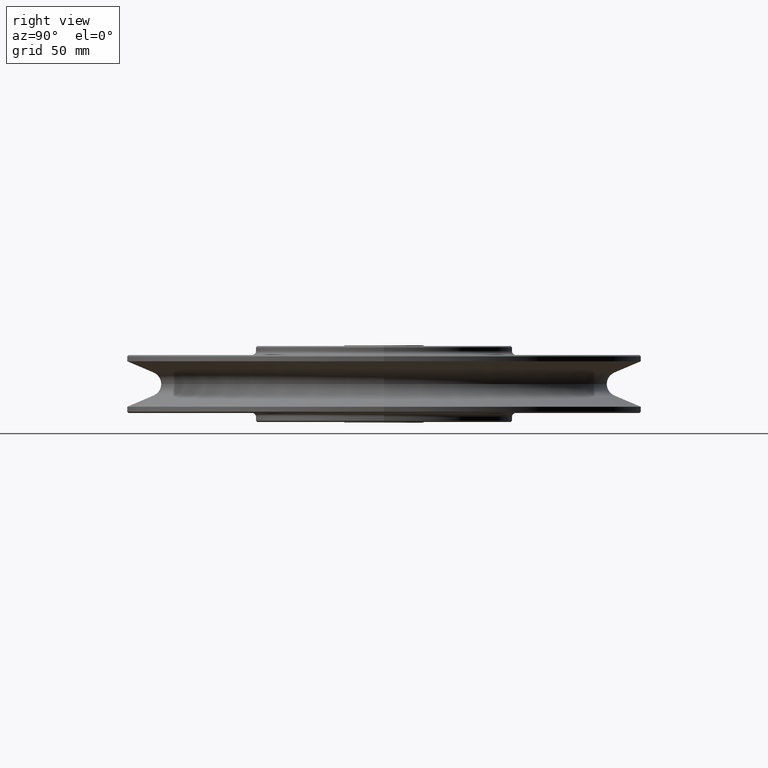
[diagram: clean part render]
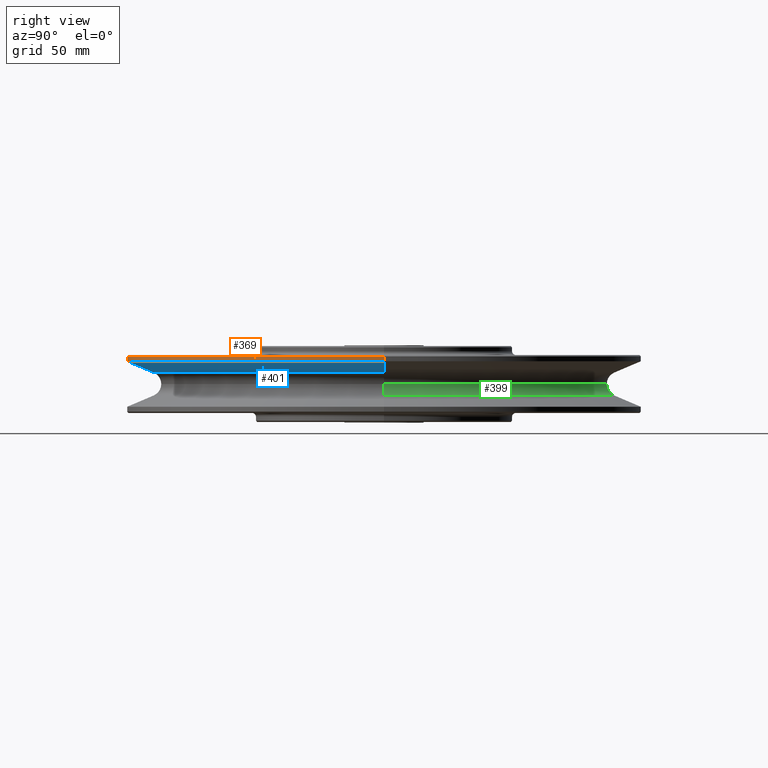
[diagram: same view with three faces highlighted in distinct colors, each labeled with its STEP entity id]
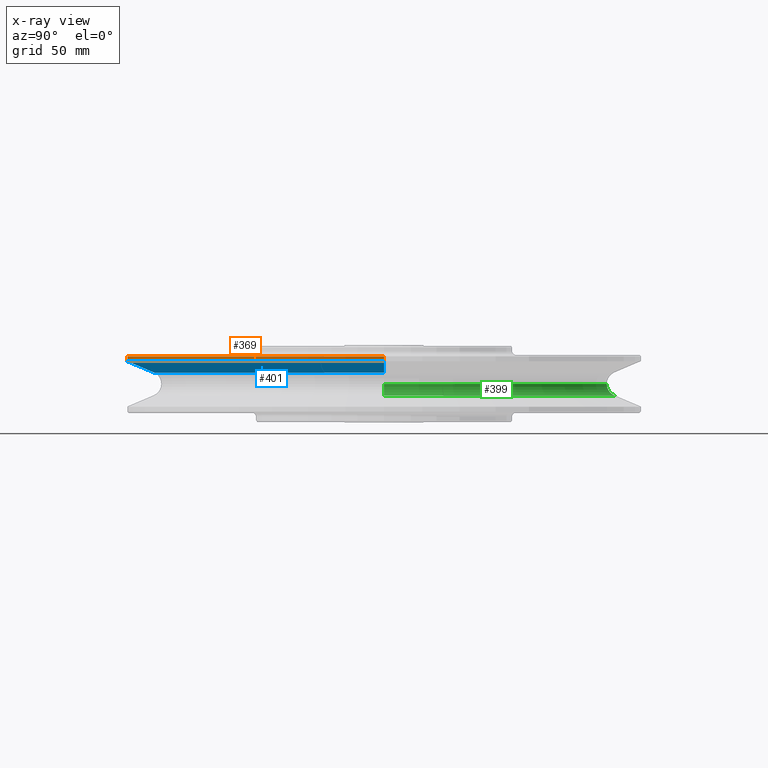
[diagram: x-ray of the same camera — body ghosted, the three highlighted faces saturated]
A machine part, right view with three faces highlighted in distinct colors.
The next image is the same camera in x-ray (body ghosted, the three faces saturated) — at least one of them is partly hidden behind the body in this view.
Their STEP definitions:

[orange] entity #369 — the highlighted cylindrical surface (partial cylindrical patch) has radius 200 mm, axis along (0, 0, 1).
#369=ADVANCED_FACE('',(#768),#769,.T.);
#768=FACE_OUTER_BOUND('',#1178,.T.);
#769=CYLINDRICAL_SURFACE('',#1179,200.0);
#1178=EDGE_LOOP('',(#2427,#2428,#2429,#2430));
#1179=AXIS2_PLACEMENT_3D('',#2431,#2432,#2433);
#2427=ORIENTED_EDGE('',*,*,#2706,.T.);
#2428=ORIENTED_EDGE('',*,*,#3073,.F.);
#2429=ORIENTED_EDGE('',*,*,#2707,.T.);
#2430=ORIENTED_EDGE('',*,*,#3074,.T.);
#2431=CARTESIAN_POINT('',(0.0,0.0,19.5825495));
#2432=DIRECTION('',(0.0,0.0,1.0));
#2433=DIRECTION('',(1.0,0.0,0.0));
#2706=EDGE_CURVE('',#3259,#3334,#3343,.T.);
#2707=EDGE_CURVE('',#3337,#3261,#3344,.T.);
#3073=EDGE_CURVE('',#3337,#3334,#3890,.T.);
#3074=EDGE_CURVE('',#3261,#3259,#3891,.T.);
#3259=VERTEX_POINT('',#5292);
#3261=VERTEX_POINT('',#5295);
#3334=VERTEX_POINT('',#5383);
#3337=VERTEX_POINT('',#5387);
#3343=LINE('',#5394,#5395);
#3344=LINE('',#5396,#5397);
#3890=CIRCLE('',#9089,200.0);
#3891=CIRCLE('',#9090,200.0);
#5292=CARTESIAN_POINT('',(200.0,0.0,17.665099));
#5295=CARTESIAN_POINT('',(-200.0,2.44929359829471E-014,17.665099));
#5383=CARTESIAN_POINT('',(200.0,0.0,21.5));
#5387=CARTESIAN_POINT('',(-200.0,2.44929359829471E-014,21.5));
#5394=CARTESIAN_POINT('',(200.0,-2.44929359829471E-014,19.5825495));
#5395=VECTOR('',#9322,1.0);
#5396=CARTESIAN_POINT('',(-200.0,2.44929359829471E-014,19.5825495));
#5397=VECTOR('',#9323,1.0);
#9089=AXIS2_PLACEMENT_3D('',#9698,#9699,#9700);
#9090=AXIS2_PLACEMENT_3D('',#9701,#9702,#9703);
#9322=DIRECTION('',(0.0,0.0,1.0));
#9323=DIRECTION('',(-0.0,-0.0,-1.0));
#9698=CARTESIAN_POINT('',(0.0,0.0,21.5));
#9699=DIRECTION('',(0.0,0.0,1.0));
#9700=DIRECTION('',(1.0,0.0,0.0));
#9701=CARTESIAN_POINT('',(0.0,0.0,17.665099));
#9702=DIRECTION('',(0.0,0.0,1.0));
#9703=DIRECTION('',(1.0,0.0,0.0));

[blue] entity #401 — the highlighted conical surface has half-angle 67.5 deg.
#401=ADVANCED_FACE('',(#820),#821,.T.);
#820=FACE_OUTER_BOUND('',#1230,.T.);
#821=CONICAL_SURFACE('',#1231,189.4939855,1.17809722010449);
#1230=EDGE_LOOP('',(#2555,#2556,#2557,#2558));
#1231=AXIS2_PLACEMENT_3D('',#2559,#2560,#2561);
#2555=ORIENTED_EDGE('',*,*,#2652,.T.);
#2556=ORIENTED_EDGE('',*,*,#3074,.F.);
#2557=ORIENTED_EDGE('',*,*,#2653,.T.);
#2558=ORIENTED_EDGE('',*,*,#2650,.T.);
#2559=CARTESIAN_POINT('',(0.0,0.0,13.313365));
#2560=DIRECTION('',(-0.0,-0.0,1.0));
#2561=DIRECTION('',(1.0,0.0,0.0));
#2650=EDGE_CURVE('',#3106,#3108,#3257,.T.);
#2652=EDGE_CURVE('',#3108,#3259,#3260,.T.);
#2653=EDGE_CURVE('',#3261,#3106,#3262,.T.);
#3074=EDGE_CURVE('',#3261,#3259,#3891,.T.);
#3106=VERTEX_POINT('',#3923);
#3108=VERTEX_POINT('',#3925);
#3257=CIRCLE('',#5290,178.987971);
#3259=VERTEX_POINT('',#5292);
#3260=LINE('',#5293,#5294);
#3261=VERTEX_POINT('',#5295);
#3262=LINE('',#5296,#5297);
#3891=CIRCLE('',#9090,200.0);
#3923=CARTESIAN_POINT('',(-178.987971,2.19197045771029E-014,8.961631));
#3925=CARTESIAN_POINT('',(178.987971,0.0,8.961631));
#5290=AXIS2_PLACEMENT_3D('',#9229,#9230,#9231);
#5292=CARTESIAN_POINT('',(200.0,0.0,17.665099));
#5293=CARTESIAN_POINT('',(189.4939855,-2.3206320280025E-014,13.313365));
#5294=VECTOR('',#9232,1.0);
#5295=CARTESIAN_POINT('',(-200.0,2.44929359829471E-014,17.665099));
#5296=CARTESIAN_POINT('',(-189.4939855,2.3206320280025E-014,13.313365));
#5297=VECTOR('',#9233,1.0);
#9090=AXIS2_PLACEMENT_3D('',#9701,#9702,#9703);
#9229=CARTESIAN_POINT('',(0.0,0.0,8.961631));
#9230=DIRECTION('',(0.0,0.0,1.0));
#9231=DIRECTION('',(1.0,0.0,0.0));
#9232=DIRECTION('',(0.923879522947386,-1.1314261005753E-016,0.382683455454389));
#9233=DIRECTION('',(0.923879522947386,-1.1314261005753E-016,-0.382683455454389));
#9701=CARTESIAN_POINT('',(0.0,0.0,17.665099));
#9702=DIRECTION('',(0.0,0.0,1.0));
#9703=DIRECTION('',(1.0,0.0,0.0));

[green] entity #399 — the highlighted toroidal blend (fillet) surface has major radius 182.7 mm and minor (blend) radius 9.7 mm.
#399=ADVANCED_FACE('',(#817),#818,.F.);
#817=FACE_OUTER_BOUND('',#1227,.T.);
#818=TOROIDAL_SURFACE('',#1228,182.6999991213,9.69999912129999);
#1227=EDGE_LOOP('',(#2547,#2548,#2549,#2550));
#1228=AXIS2_PLACEMENT_3D('',#2551,#2552,#2553);
#2547=ORIENTED_EDGE('',*,*,#2564,.T.);
#2548=ORIENTED_EDGE('',*,*,#2658,.T.);
#2549=ORIENTED_EDGE('',*,*,#2663,.T.);
#2550=ORIENTED_EDGE('',*,*,#2656,.T.);
#2551=CARTESIAN_POINT('',(0.0,0.0,0.0));
#2552=DIRECTION('',(0.0,0.0,1.0));
#2553=DIRECTION('',(1.0,0.0,0.0));
#2564=EDGE_CURVE('',#3103,#3104,#3105,.T.);
#2656=EDGE_CURVE('',#3265,#3103,#3266,.T.);
#2658=EDGE_CURVE('',#3104,#3267,#3269,.T.);
#2663=EDGE_CURVE('',#3267,#3265,#3276,.T.);
#3103=VERTEX_POINT('',#3920);
#3104=VERTEX_POINT('',#3921);
#3105=CIRCLE('',#3922,173.0);
#3265=VERTEX_POINT('',#5300);
#3266=CIRCLE('',#5301,9.69999912129999);
#3267=VERTEX_POINT('',#5302);
#3269=CIRCLE('',#5304,9.69999912129999);
#3276=CIRCLE('',#5313,178.987971);
#3920=CARTESIAN_POINT('',(-173.0,2.4210095884045E-014,1.18790728756322E-015));
#3921=CARTESIAN_POINT('',(173.0,-2.4210095884045E-014,1.18790728756322E-015));
#3922=AXIS2_PLACEMENT_3D('',#9118,#9119,#9120);
#5300=CARTESIAN_POINT('',(-178.987971,2.19197045771029E-014,-8.961631));
#5301=AXIS2_PLACEMENT_3D('',#9237,#9238,#9239);
#5302=CARTESIAN_POINT('',(178.987971,0.0,-8.961631));
#5304=AXIS2_PLACEMENT_3D('',#9243,#9244,#9245);
#5313=AXIS2_PLACEMENT_3D('',#9251,#9252,#9253);
#9118=CARTESIAN_POINT('',(0.0,0.0,1.18790728756322E-015));
#9119=DIRECTION('',(-0.0,0.0,-1.0));
#9120=DIRECTION('',(-1.0,0.0,0.0));
#9237=CARTESIAN_POINT('',(-182.6999991213,2.23742969128124E-014,0.0));
#9238=DIRECTION('',(-1.22464679914735E-016,-1.0,0.0));
#9239=DIRECTION('',(-1.0,1.22464679914735E-016,-0.0));
#9243=CARTESIAN_POINT('',(182.6999991213,-2.23742969128124E-014,0.0));
#9244=DIRECTION('',(-1.22464679914735E-016,-1.0,0.0));
#9245=DIRECTION('',(1.0,-1.22464679914735E-016,0.0));
#9251=CARTESIAN_POINT('',(0.0,0.0,-8.961631));
#9252=DIRECTION('',(0.0,0.0,1.0));
#9253=DIRECTION('',(1.0,0.0,0.0));